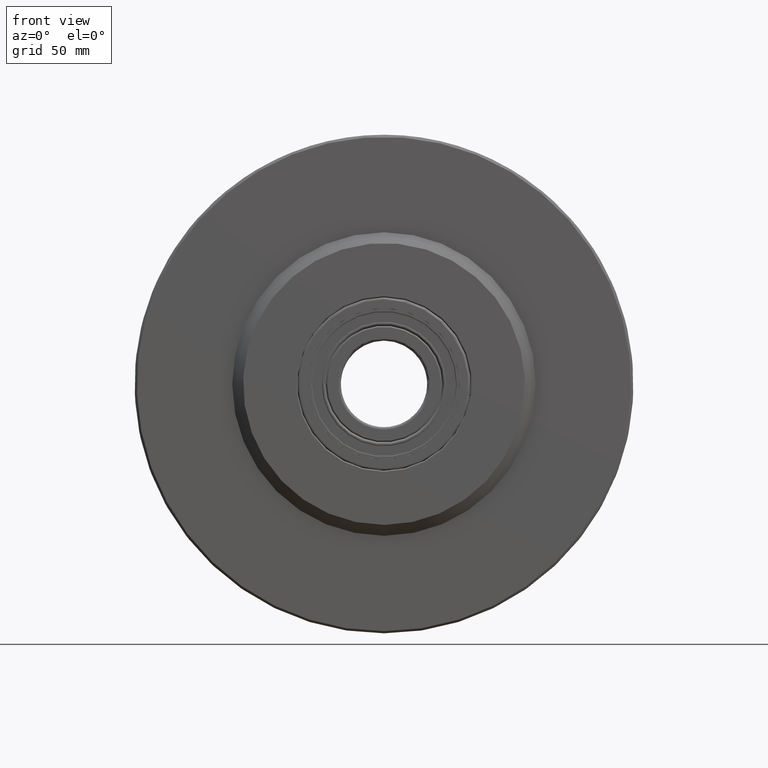
[diagram: clean part render]
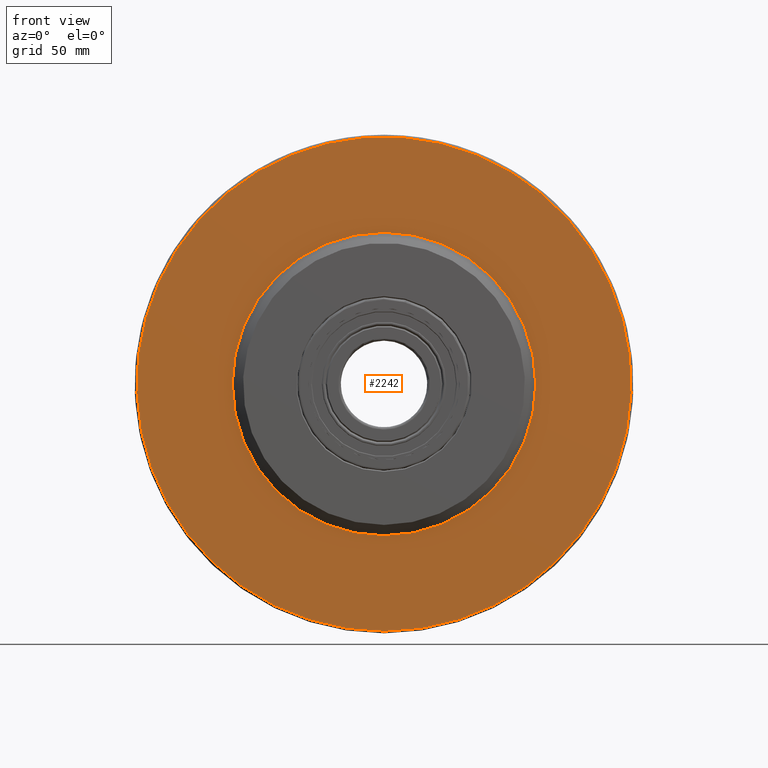
[diagram: same view with one face highlighted and labeled with its STEP entity id]
A machine part, front view. The second image highlights one B-rep face of the part: STEP entity #2242.
In plain terms, the highlighted planar face has unit normal (0, 1, 0).
Its self-contained STEP definition (entity closure, byte-faithful):
#198=FACE_BOUND('',#462,.T.);
#266=PLANE('',#2468);
#300=FACE_OUTER_BOUND('',#461,.T.);
#461=EDGE_LOOP('',(#1590));
#462=EDGE_LOOP('',(#1591));
#834=CIRCLE('',#2469,114.);
#835=CIRCLE('',#2470,70.);
#1044=VERTEX_POINT('',#3794);
#1045=VERTEX_POINT('',#3796);
#1271=EDGE_CURVE('',#1044,#1044,#834,.F.);
#1272=EDGE_CURVE('',#1045,#1045,#835,.T.);
#1590=ORIENTED_EDGE('',*,*,#1271,.T.);
#1591=ORIENTED_EDGE('',*,*,#1272,.T.);
#2242=ADVANCED_FACE('',(#300,#198),#266,.F.);
#2468=AXIS2_PLACEMENT_3D('',#3793,#2897,#2898);
#2469=AXIS2_PLACEMENT_3D('',#3795,#2899,#2900);
#2470=AXIS2_PLACEMENT_3D('',#3797,#2901,#2902);
#2897=DIRECTION('center_axis',(0.,1.,0.));
#2898=DIRECTION('ref_axis',(0.,0.,1.));
#2899=DIRECTION('center_axis',(0.,1.,0.));
#2900=DIRECTION('ref_axis',(0.,0.,1.));
#2901=DIRECTION('center_axis',(0.,1.,0.));
#2902=DIRECTION('ref_axis',(1.,0.,0.));
#3793=CARTESIAN_POINT('Origin',(0.,-40.,0.));
#3794=CARTESIAN_POINT('',(-1.39609735102798E-14,-40.,-114.));
#3795=CARTESIAN_POINT('Origin',(0.,-40.,0.));
#3796=CARTESIAN_POINT('',(-8.57252759403147E-15,-40.,-70.));
#3797=CARTESIAN_POINT('Origin',(0.,-40.,-3.46944695195362E-15));